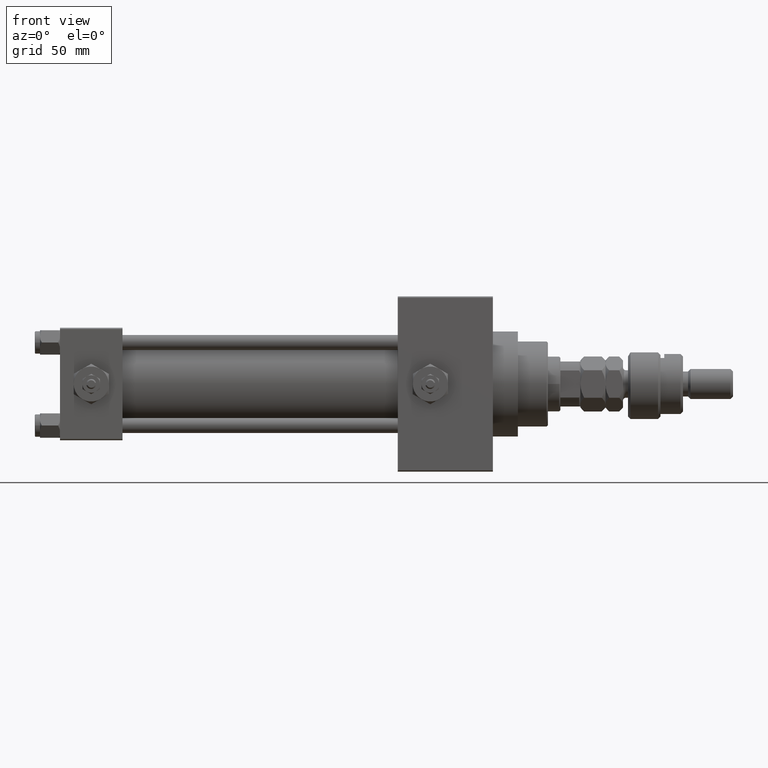
[diagram: clean part render]
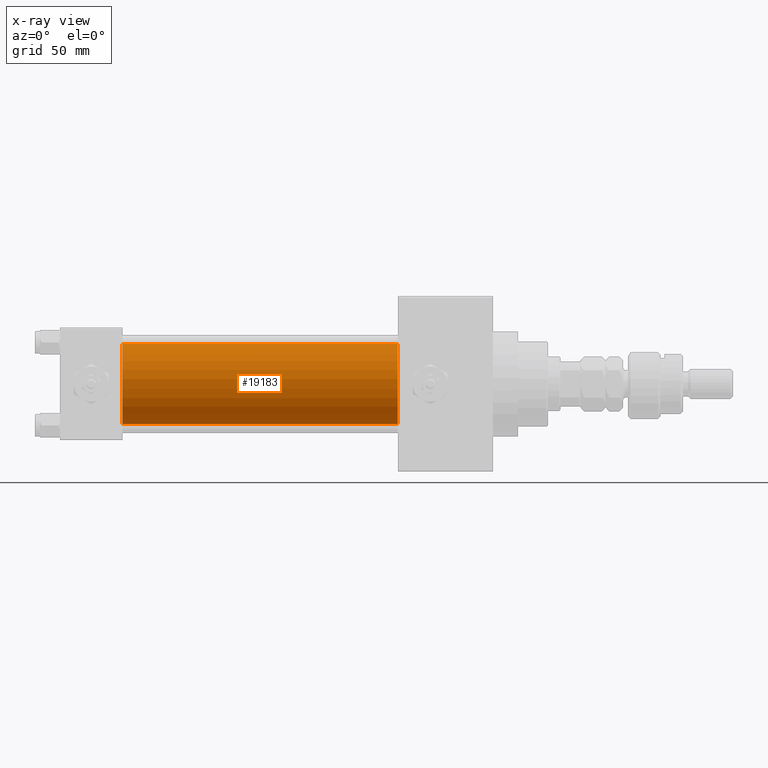
[diagram: x-ray — body ghosted, one internal face saturated and labeled with its STEP entity id]
A machine part, front view, then the same camera in x-ray: the body is ghosted and one INTERNAL B-rep face — a face not visible from any outside direction — is saturated and labeled: STEP entity #19183.
In plain terms, the highlighted cylindrical surface (partial cylindrical patch) has radius 16 mm, axis along (-1, -0, -0).
Its self-contained STEP definition (entity closure, byte-faithful):
#669 = CARTESIAN_POINT ( 'NONE',  ( 135.0000000000000000, -2.602085213965210642E-15, 0.000000000000000000 ) ) ;
#1994 = CYLINDRICAL_SURFACE ( 'NONE', #30820, 16.00000000000000000 ) ;
#2607 = EDGE_CURVE ( 'NONE', #8063, #45751, #25188, .T. ) ;
#6190 = DIRECTION ( 'NONE',  ( 0.000000000000000000, 0.000000000000000000, 1.000000000000000000 ) ) ;
#7310 = EDGE_LOOP ( 'NONE', ( #19761, #29721, #20192, #39983 ) ) ;
#8063 = VERTEX_POINT ( 'NONE', #26234 ) ;
#8274 = LINE ( 'NONE', #28235, #29165 ) ;
#9206 = CARTESIAN_POINT ( 'NONE',  ( 25.00000000000000000, -6.426503353294456087E-16, -16.00000000000000000 ) ) ;
#11259 = LINE ( 'NONE', #46724, #37544 ) ;
#11944 = DIRECTION ( 'NONE',  ( 0.000000000000000000, 0.000000000000000000, -1.000000000000000000 ) ) ;
#13608 = VERTEX_POINT ( 'NONE', #9206 ) ;
#17585 = AXIS2_PLACEMENT_3D ( 'NONE', #23513, #48438, #11944 ) ;
#18020 = FACE_OUTER_BOUND ( 'NONE', #7310, .T. ) ;
#19183 = ADVANCED_FACE ( 'NONE', ( #18020 ), #1994, .F. ) ;
#19761 = ORIENTED_EDGE ( 'NONE', *, *, #2607, .T. ) ;
#20192 = ORIENTED_EDGE ( 'NONE', *, *, #39234, .F. ) ;
#23355 = DIRECTION ( 'NONE',  ( -1.000000000000000000, -0.000000000000000000, -0.000000000000000000 ) ) ;
#23513 = CARTESIAN_POINT ( 'NONE',  ( 25.00000000000000000, -2.602085213965210642E-15, 0.000000000000000000 ) ) ;
#24323 = DIRECTION ( 'NONE',  ( 0.000000000000000000, 0.000000000000000000, -1.000000000000000000 ) ) ;
#24586 = DIRECTION ( 'NONE',  ( 1.000000000000000000, 0.000000000000000000, 0.000000000000000000 ) ) ;
#25188 = CIRCLE ( 'NONE', #31912, 16.00000000000000000 ) ;
#26234 = CARTESIAN_POINT ( 'NONE',  ( 135.0000000000000000, -2.602085213965210642E-15, 16.00000000000000000 ) ) ;
#28235 = CARTESIAN_POINT ( 'NONE',  ( 135.0000000000000000, -2.602085213965210642E-15, 16.00000000000000000 ) ) ;
#29165 = VECTOR ( 'NONE', #40320, 1000.000000000000000 ) ;
#29721 = ORIENTED_EDGE ( 'NONE', *, *, #32134, .T. ) ;
#30106 = CARTESIAN_POINT ( 'NONE',  ( 135.0000000000000000, -2.602085213965210642E-15, 0.000000000000000000 ) ) ;
#30295 = EDGE_CURVE ( 'NONE', #8063, #48801, #8274, .T. ) ;
#30820 = AXIS2_PLACEMENT_3D ( 'NONE', #30106, #46123, #6190 ) ;
#30850 = CARTESIAN_POINT ( 'NONE',  ( 25.00000000000000000, -2.602085213965210642E-15, 16.00000000000000000 ) ) ;
#31912 = AXIS2_PLACEMENT_3D ( 'NONE', #669, #24586, #24323 ) ;
#32134 = EDGE_CURVE ( 'NONE', #45751, #13608, #11259, .T. ) ;
#33611 = CARTESIAN_POINT ( 'NONE',  ( 135.0000000000000000, -6.426503353294456087E-16, -16.00000000000000000 ) ) ;
#37544 = VECTOR ( 'NONE', #23355, 1000.000000000000000 ) ;
#39234 = EDGE_CURVE ( 'NONE', #48801, #13608, #46940, .T. ) ;
#39983 = ORIENTED_EDGE ( 'NONE', *, *, #30295, .F. ) ;
#40320 = DIRECTION ( 'NONE',  ( -1.000000000000000000, -0.000000000000000000, -0.000000000000000000 ) ) ;
#45751 = VERTEX_POINT ( 'NONE', #33611 ) ;
#46123 = DIRECTION ( 'NONE',  ( -1.000000000000000000, -0.000000000000000000, -0.000000000000000000 ) ) ;
#46724 = CARTESIAN_POINT ( 'NONE',  ( 135.0000000000000000, -6.426503353294456087E-16, -16.00000000000000000 ) ) ;
#46940 = CIRCLE ( 'NONE', #17585, 16.00000000000000000 ) ;
#48438 = DIRECTION ( 'NONE',  ( 1.000000000000000000, 0.000000000000000000, 0.000000000000000000 ) ) ;
#48801 = VERTEX_POINT ( 'NONE', #30850 ) ;